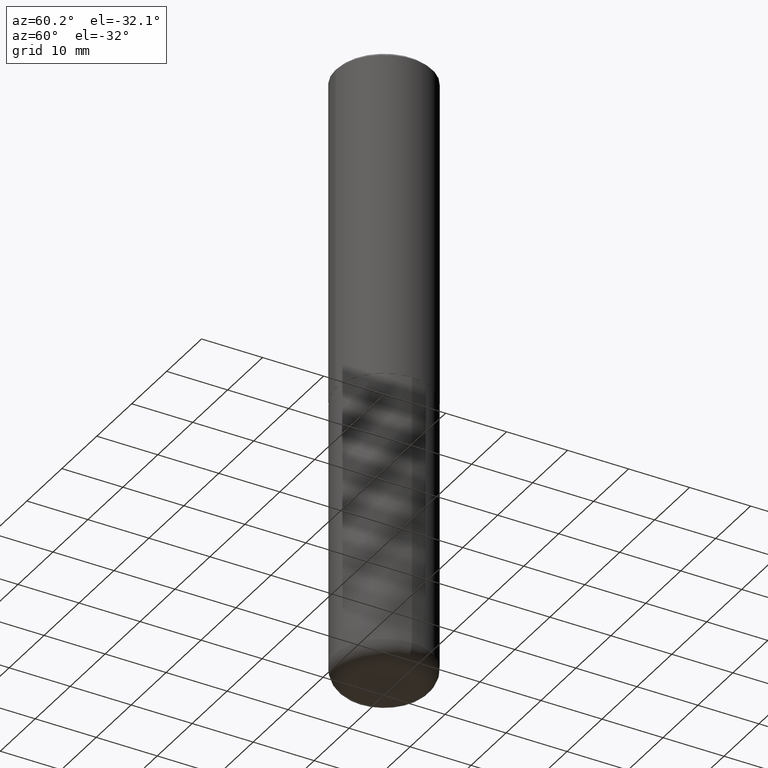
[diagram: clean part render]
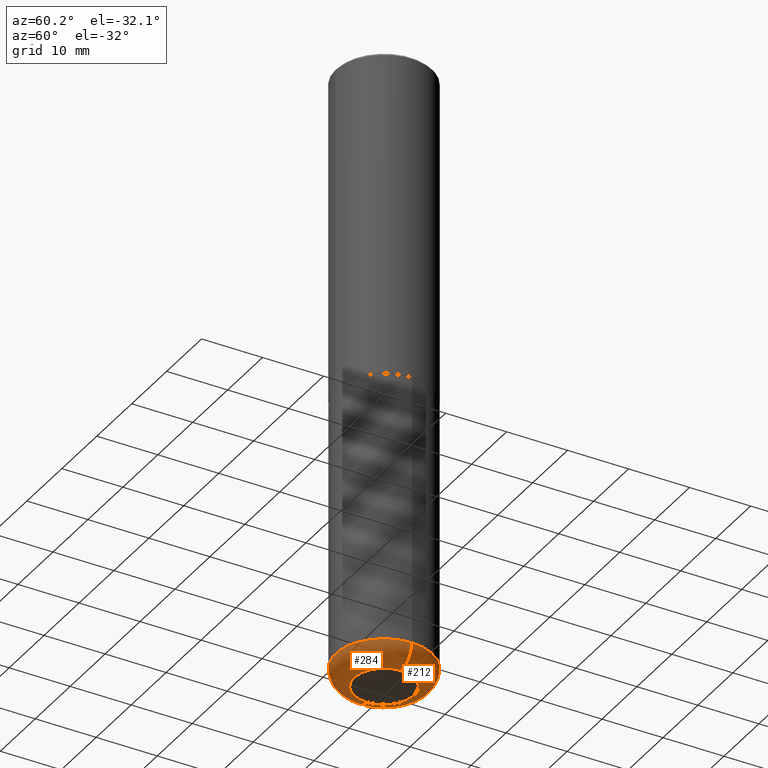
[diagram: same view with one multi-face feature highlighted, each face labeled with its STEP entity id]
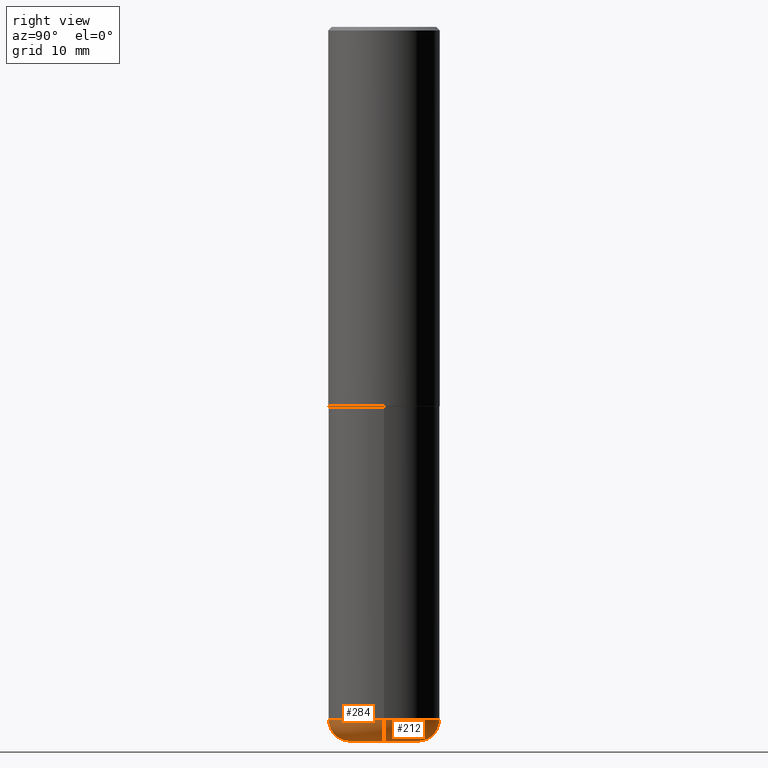
[diagram: same view with one multi-face feature highlighted, each face labeled with its STEP entity id]
A machine part, auxiliary view. The highlighted faces form ONE feature: a constant-radius fillet chain: 2 tangent blend faces with common blend radius 3.048 mm. The faces share edges in the B-rep.
A second angle (right view) of the same feature is appended — it is thin or edge-on in the first view.
Their STEP definitions:
[1] entity #284 (Torus):
#5 = AXIS2_PLACEMENT_3D ( 'NONE', #113, #397, #325 ) ;
#7 = EDGE_CURVE ( 'NONE', #245, #150, #144, .T. ) ;
#10 = AXIS2_PLACEMENT_3D ( 'NONE', #249, #158, #126 ) ;
#16 = DIRECTION ( 'NONE',  ( -1.000000000000000000, 7.105427357600998703E-15, 0.000000000000000000 ) ) ;
#20 = DIRECTION ( 'NONE',  ( 1.000000000000000000, -6.982962677686276177E-15, 0.000000000000000000 ) ) ;
#38 = ORIENTED_EDGE ( 'NONE', *, *, #42, .F. ) ;
#42 = EDGE_CURVE ( 'NONE', #408, #360, #333, .T. ) ;
#48 = CARTESIAN_POINT ( 'NONE',  ( -0.1925000000000000044, -1.217915282837321360E-14, -3.880000000000000338 ) ) ;
#78 = CARTESIAN_POINT ( 'NONE',  ( 9.488418967998330085E-29, -1.354694759471140570E-14, -3.880000000000000338 ) ) ;
#84 = EDGE_CURVE ( 'NONE', #408, #245, #324, .T. ) ;
#90 = DIRECTION ( 'NONE',  ( -6.982962677686266711E-15, -1.000000000000000000, 3.491481338843145583E-15 ) ) ;
#101 = EDGE_LOOP ( 'NONE', ( #38, #148, #134, #270 ) ) ;
#113 = CARTESIAN_POINT ( 'NONE',  ( 9.488418967998330085E-29, -1.354694759471140570E-14, -3.880000000000000338 ) ) ;
#126 = DIRECTION ( 'NONE',  ( 1.000000000000000000, -6.982962677686269077E-15, 0.000000000000000000 ) ) ;
#134 = ORIENTED_EDGE ( 'NONE', *, *, #7, .T. ) ;
#144 = CIRCLE ( 'NONE', #316, 0.1200000000000001482 ) ;
#148 = ORIENTED_EDGE ( 'NONE', *, *, #84, .T. ) ;
#150 = VERTEX_POINT ( 'NONE', #335 ) ;
#158 = DIRECTION ( 'NONE',  ( -2.445468806185136597E-29, 3.491481338843145583E-15, 1.000000000000000000 ) ) ;
#175 = DIRECTION ( 'NONE',  ( -2.445468806185136597E-29, 3.491481338843145583E-15, 1.000000000000000000 ) ) ;
#201 = AXIS2_PLACEMENT_3D ( 'NONE', #48, #334, #16 ) ;
#208 = DIRECTION ( 'NONE',  ( 1.000000000000000000, -6.982962677686269077E-15, 0.000000000000000000 ) ) ;
#216 = AXIS2_PLACEMENT_3D ( 'NONE', #78, #175, #208 ) ;
#230 = CARTESIAN_POINT ( 'NONE',  ( 0.1925000000000000044, -1.531014567082719057E-14, -4.000000000000000888 ) ) ;
#245 = VERTEX_POINT ( 'NONE', #230 ) ;
#249 = CARTESIAN_POINT ( 'NONE',  ( 9.781875224740547508E-29, -1.396592535537258391E-14, -4.000000000000000888 ) ) ;
#270 = ORIENTED_EDGE ( 'NONE', *, *, #296, .F. ) ;
#273 = FACE_OUTER_BOUND ( 'NONE', #101, .T. ) ;
#284 = ADVANCED_FACE ( 'NONE', ( #273 ), #355, .T. ) ;
#296 = EDGE_CURVE ( 'NONE', #360, #150, #362, .T. ) ;
#300 = CARTESIAN_POINT ( 'NONE',  ( 0.1925000000000000044, -1.489116791016601393E-14, -3.880000000000000338 ) ) ;
#316 = AXIS2_PLACEMENT_3D ( 'NONE', #300, #90, #20 ) ;
#322 = CARTESIAN_POINT ( 'NONE',  ( -0.3125000000000000555, -1.132650154546109262E-14, -3.880000000000000338 ) ) ;
#324 = CIRCLE ( 'NONE', #10, 0.1925000000000000044 ) ;
#325 = DIRECTION ( 'NONE',  ( 1.000000000000000000, -6.982962677686265922E-15, 4.883557194083112340E-29 ) ) ;
#330 = CARTESIAN_POINT ( 'NONE',  ( -0.1925000000000000044, -1.196231606724774300E-14, -4.000000000000000888 ) ) ;
#333 = CIRCLE ( 'NONE', #201, 0.1200000000000001482 ) ;
#334 = DIRECTION ( 'NONE',  ( 7.105427357601001859E-15, 1.000000000000000000, -3.491481338843145583E-15 ) ) ;
#335 = CARTESIAN_POINT ( 'NONE',  ( 0.3125000000000000555, -1.572912343148836404E-14, -3.880000000000000338 ) ) ;
#355 = TOROIDAL_SURFACE ( 'NONE', #5, 0.1925000000000000044, 0.1200000000000001898 ) ;
#360 = VERTEX_POINT ( 'NONE', #322 ) ;
#362 = CIRCLE ( 'NONE', #216, 0.3125000000000000000 ) ;
#397 = DIRECTION ( 'NONE',  ( -2.445468806185136597E-29, 3.491481338843145583E-15, 1.000000000000000000 ) ) ;
#408 = VERTEX_POINT ( 'NONE', #330 ) ;
[2] entity #212 (Torus):
#7 = EDGE_CURVE ( 'NONE', #245, #150, #144, .T. ) ;
#16 = DIRECTION ( 'NONE',  ( -1.000000000000000000, 7.105427357600998703E-15, 0.000000000000000000 ) ) ;
#20 = DIRECTION ( 'NONE',  ( 1.000000000000000000, -6.982962677686276177E-15, 0.000000000000000000 ) ) ;
#42 = EDGE_CURVE ( 'NONE', #408, #360, #333, .T. ) ;
#48 = CARTESIAN_POINT ( 'NONE',  ( -0.1925000000000000044, -1.217915282837321360E-14, -3.880000000000000338 ) ) ;
#49 = TOROIDAL_SURFACE ( 'NONE', #151, 0.1925000000000000044, 0.1200000000000001898 ) ;
#90 = DIRECTION ( 'NONE',  ( -6.982962677686266711E-15, -1.000000000000000000, 3.491481338843145583E-15 ) ) ;
#104 = DIRECTION ( 'NONE',  ( 1.000000000000000000, -6.982962677686265922E-15, 4.883557194083112340E-29 ) ) ;
#110 = CIRCLE ( 'NONE', #391, 0.3125000000000000000 ) ;
#130 = EDGE_CURVE ( 'NONE', #245, #408, #411, .T. ) ;
#135 = AXIS2_PLACEMENT_3D ( 'NONE', #283, #259, #188 ) ;
#144 = CIRCLE ( 'NONE', #316, 0.1200000000000001482 ) ;
#150 = VERTEX_POINT ( 'NONE', #335 ) ;
#151 = AXIS2_PLACEMENT_3D ( 'NONE', #235, #356, #104 ) ;
#156 = EDGE_LOOP ( 'NONE', ( #274, #359, #363, #209 ) ) ;
#188 = DIRECTION ( 'NONE',  ( 1.000000000000000000, -6.982962677686269077E-15, 0.000000000000000000 ) ) ;
#201 = AXIS2_PLACEMENT_3D ( 'NONE', #48, #334, #16 ) ;
#209 = ORIENTED_EDGE ( 'NONE', *, *, #7, .F. ) ;
#212 = ADVANCED_FACE ( 'NONE', ( #393 ), #49, .T. ) ;
#230 = CARTESIAN_POINT ( 'NONE',  ( 0.1925000000000000044, -1.531014567082719057E-14, -4.000000000000000888 ) ) ;
#235 = CARTESIAN_POINT ( 'NONE',  ( 9.488418967998330085E-29, -1.354694759471140570E-14, -3.880000000000000338 ) ) ;
#238 = CARTESIAN_POINT ( 'NONE',  ( 9.488418967998330085E-29, -1.354694759471140570E-14, -3.880000000000000338 ) ) ;
#245 = VERTEX_POINT ( 'NONE', #230 ) ;
#259 = DIRECTION ( 'NONE',  ( -2.445468806185136597E-29, 3.491481338843145583E-15, 1.000000000000000000 ) ) ;
#268 = DIRECTION ( 'NONE',  ( -2.445468806185136597E-29, 3.491481338843145583E-15, 1.000000000000000000 ) ) ;
#274 = ORIENTED_EDGE ( 'NONE', *, *, #130, .T. ) ;
#283 = CARTESIAN_POINT ( 'NONE',  ( 9.781875224740547508E-29, -1.396592535537258391E-14, -4.000000000000000888 ) ) ;
#300 = CARTESIAN_POINT ( 'NONE',  ( 0.1925000000000000044, -1.489116791016601393E-14, -3.880000000000000338 ) ) ;
#316 = AXIS2_PLACEMENT_3D ( 'NONE', #300, #90, #20 ) ;
#322 = CARTESIAN_POINT ( 'NONE',  ( -0.3125000000000000555, -1.132650154546109262E-14, -3.880000000000000338 ) ) ;
#330 = CARTESIAN_POINT ( 'NONE',  ( -0.1925000000000000044, -1.196231606724774300E-14, -4.000000000000000888 ) ) ;
#333 = CIRCLE ( 'NONE', #201, 0.1200000000000001482 ) ;
#334 = DIRECTION ( 'NONE',  ( 7.105427357601001859E-15, 1.000000000000000000, -3.491481338843145583E-15 ) ) ;
#335 = CARTESIAN_POINT ( 'NONE',  ( 0.3125000000000000555, -1.572912343148836404E-14, -3.880000000000000338 ) ) ;
#356 = DIRECTION ( 'NONE',  ( -2.445468806185136597E-29, 3.491481338843145583E-15, 1.000000000000000000 ) ) ;
#359 = ORIENTED_EDGE ( 'NONE', *, *, #42, .T. ) ;
#360 = VERTEX_POINT ( 'NONE', #322 ) ;
#363 = ORIENTED_EDGE ( 'NONE', *, *, #394, .F. ) ;
#391 = AXIS2_PLACEMENT_3D ( 'NONE', #238, #268, #399 ) ;
#393 = FACE_OUTER_BOUND ( 'NONE', #156, .T. ) ;
#394 = EDGE_CURVE ( 'NONE', #150, #360, #110, .T. ) ;
#399 = DIRECTION ( 'NONE',  ( 1.000000000000000000, -6.982962677686269077E-15, 0.000000000000000000 ) ) ;
#408 = VERTEX_POINT ( 'NONE', #330 ) ;
#411 = CIRCLE ( 'NONE', #135, 0.1925000000000000044 ) ;